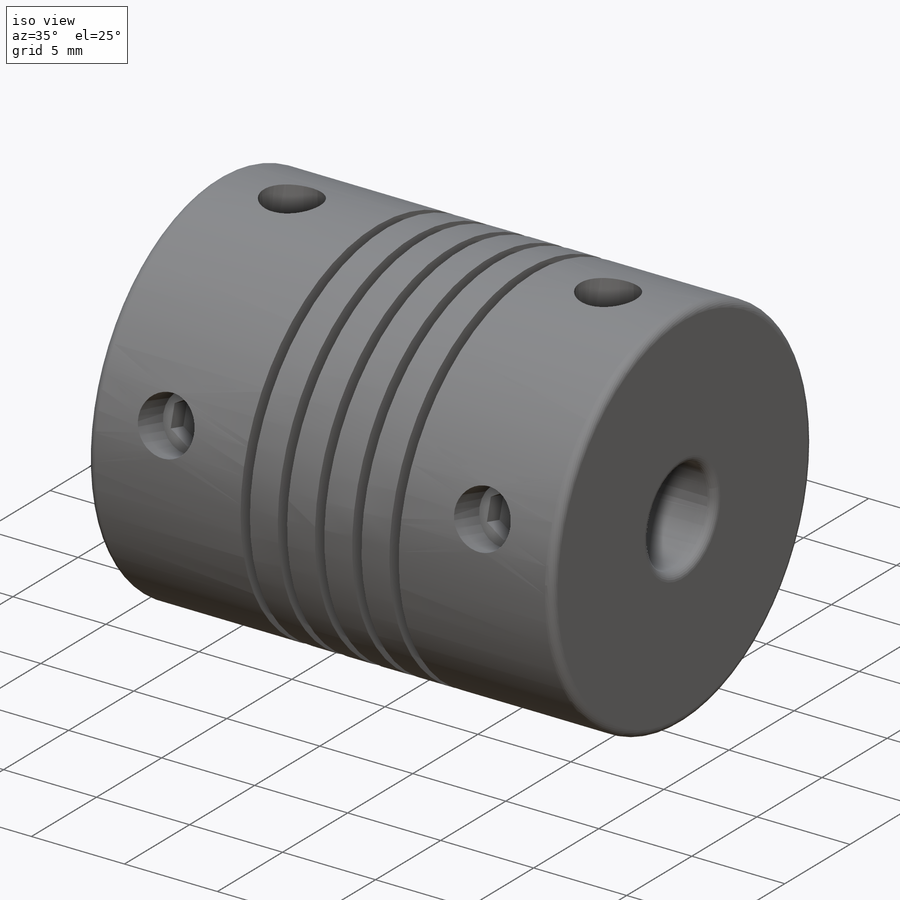
[diagram: iso view]
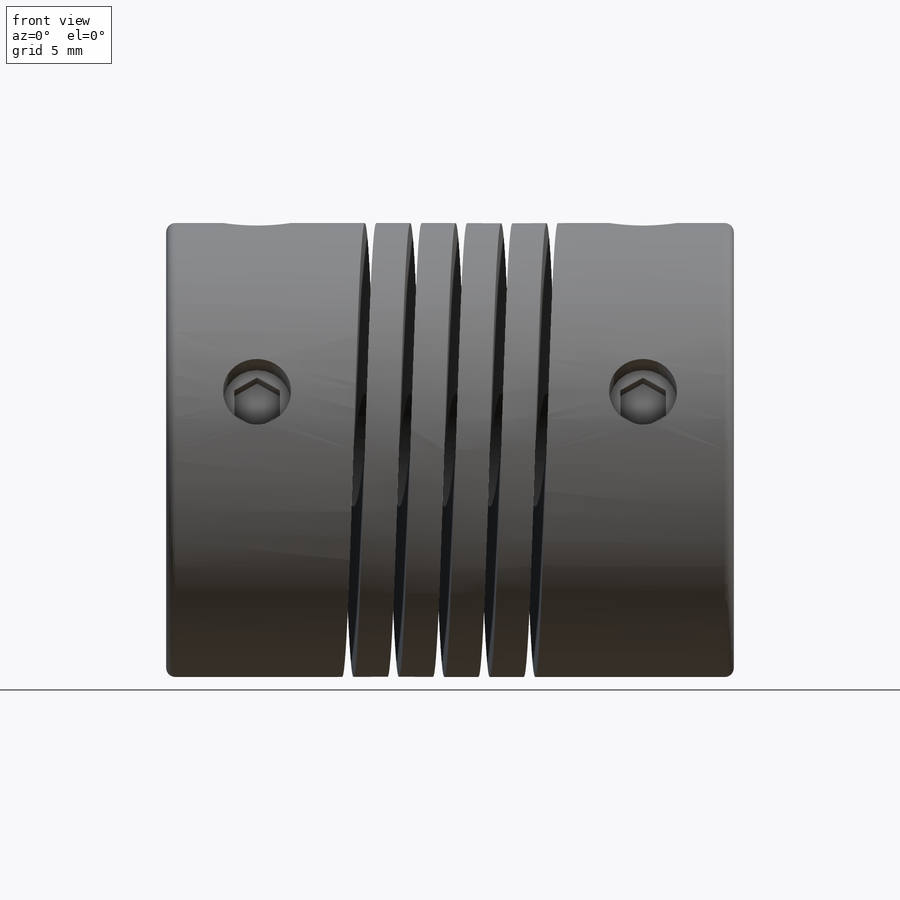
[diagram: front view]
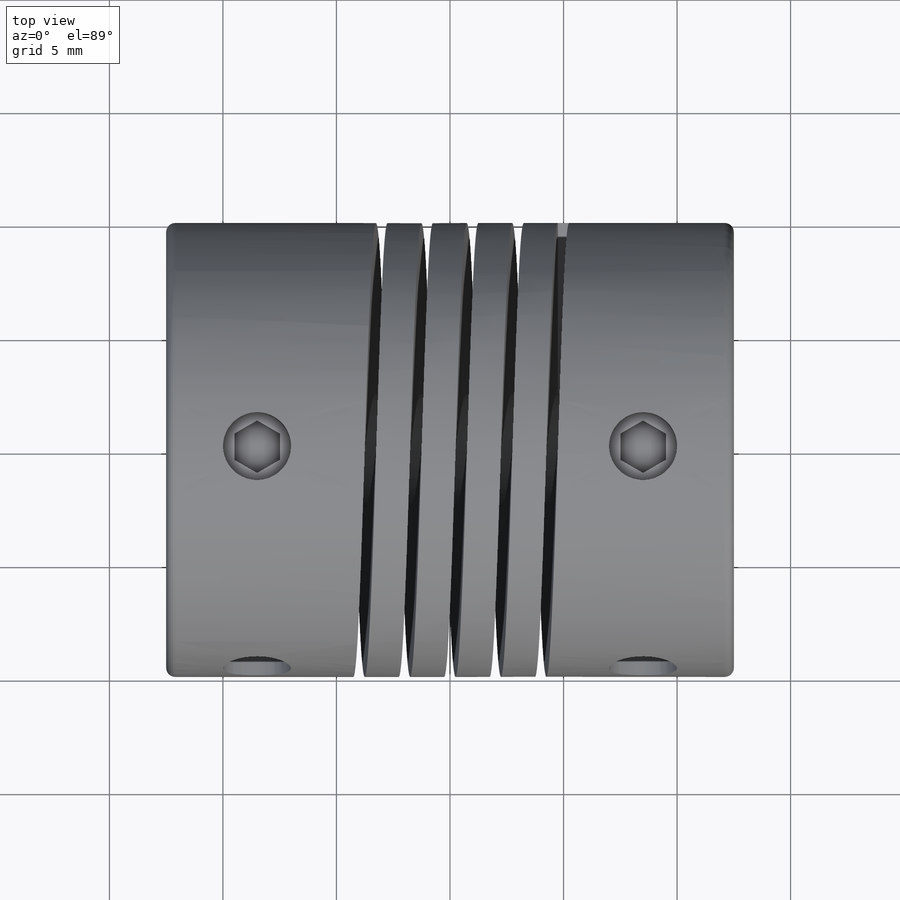
[diagram: top view]
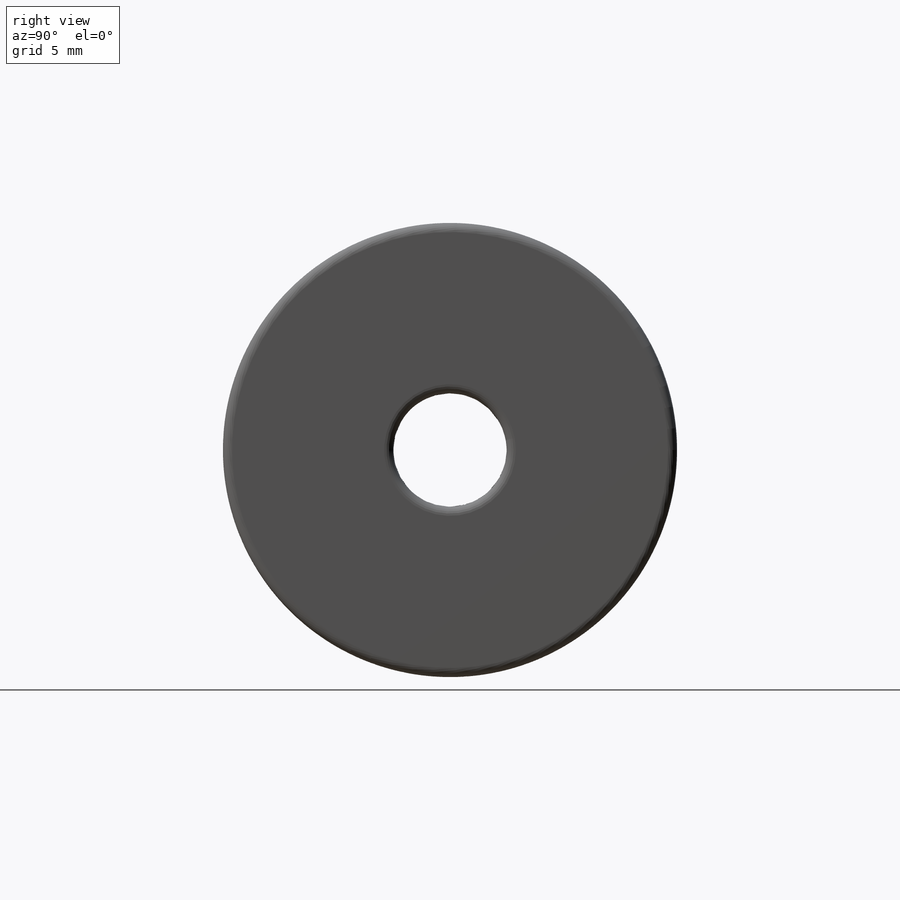
[diagram: right view]
SOLIDWORKS PART (.sldprt)
format: sldprt  version: not decoded by parser v0  size: 474,624 bytes
history: native  units: mm
features: sketch x5, cut_extrude x2, material x1, extrude x1, pattern_circular x1, helix x1, sweep x1, fillet x1 (+11 scaffold rows collapsed)
feature tree (24):
  scaffold x11  (default folders/planes/origin — collapsed)
  material  "1060 Alloy"
  sketch  "Sketch1"  dims[D1=20.0mm D2=5.0mm]
  extrude  "Boss-Extrude1"  Depth=17.5mm
  sketch  "Sketch2"  dims[D1=3.0mm D2=17.0mm]
  cut_extrude  "Cut-Extrude1"  Depth=8mm
  sketch  "Sketch4"  dims[D1=2.0mm]
  cut_extrude  "Cut-Extrude2"  Depth=1mm
  pattern_circular  "CirPattern1"  Count=2 Angle=75deg
  sketch  "Sketch5"
  helix  "Helix/Spiral1"  Pitch=10mm
  sketch  "Sketch7"  dims[D1=0.5mm]
  sweep  "Cut-Sweep2"
  fillet  "Fillet1"  Radius=0.4mm
decode coverage: 10 of 12 modeling features carry decoded parameters
note: suppression state not decoded; provenance and decode notes live in map.json
